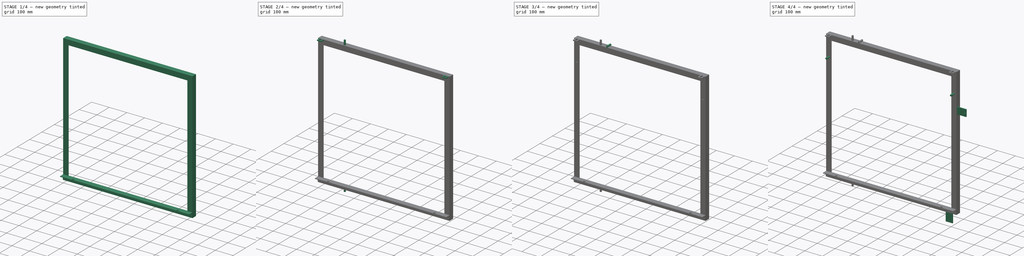
[diagram: build sequence overview — one tinted view per stage of 4, left to right]
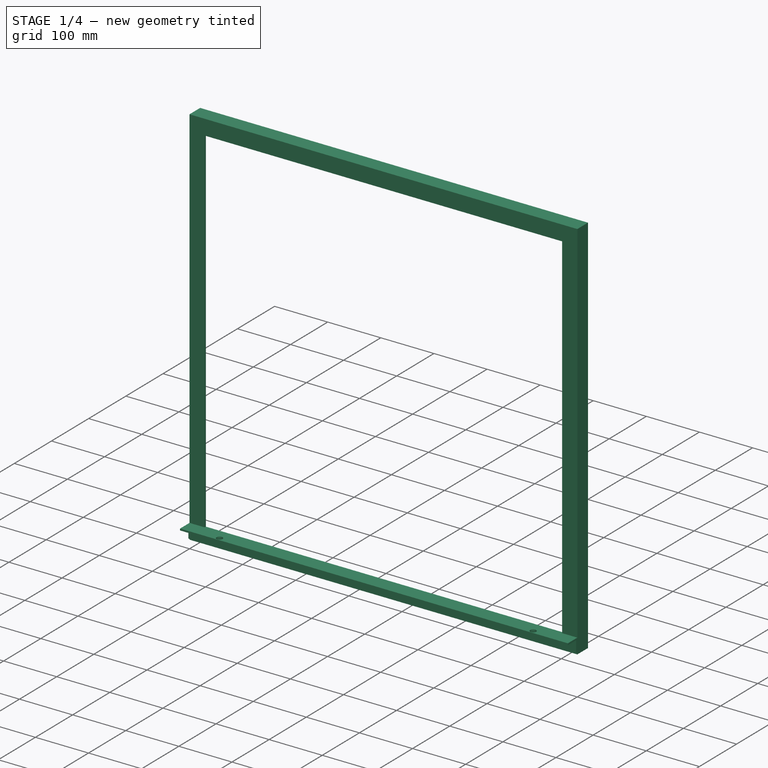
[diagram: stage 1 of 4 — iso view after this stage's code; geometry added in this stage tinted green]
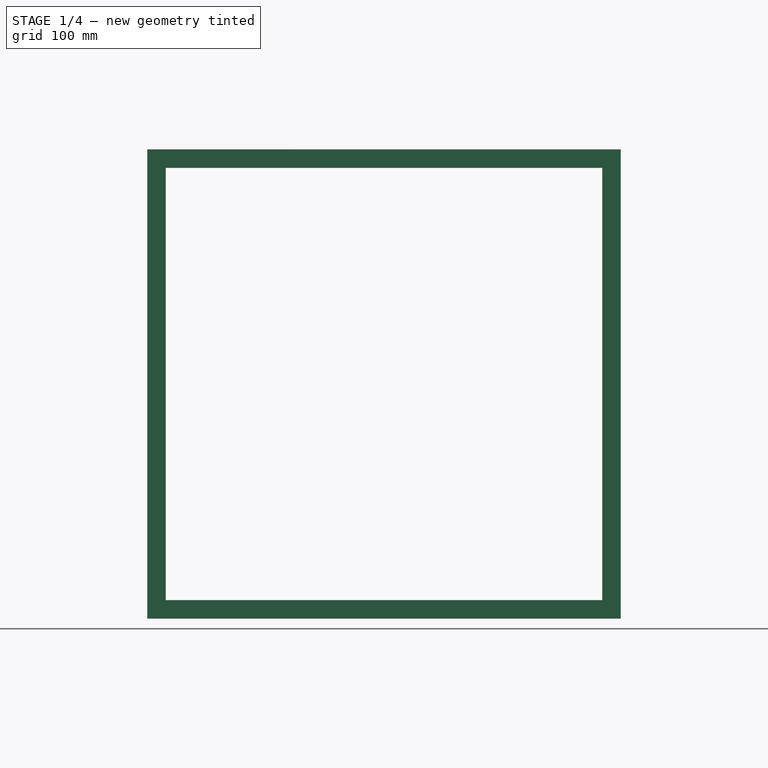
[diagram: stage 1 of 4 — front view after this stage's code; geometry added in this stage tinted green]
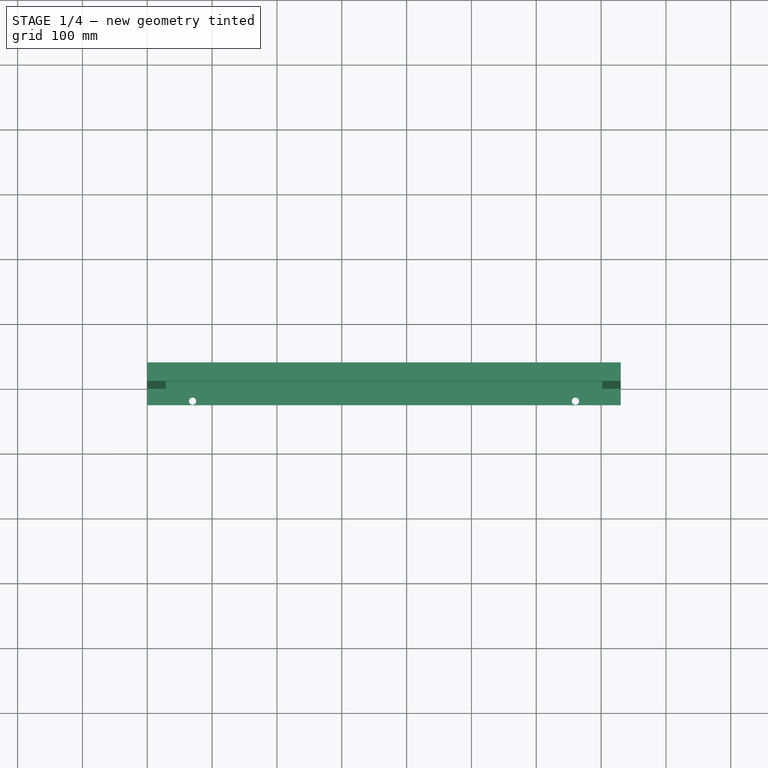
[diagram: stage 1 of 4 — top view after this stage's code; geometry added in this stage tinted green]
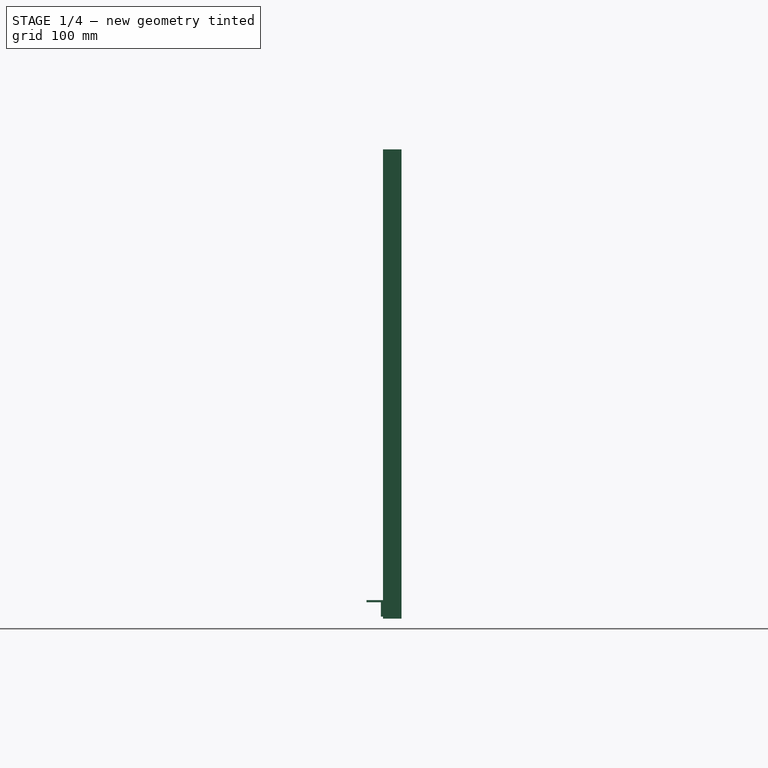
[diagram: stage 1 of 4 — right view after this stage's code; geometry added in this stage tinted green]
FCSTD DOCUMENT  (FreeCAD 0.20R)
Label: adapter-rev2
License: All rights reserved
LicenseURL: http://en.wikipedia.org/wiki/All_rights_reserved
objects: Sketcher::SketchObject×14, PartDesign::Pad×11, PartDesign::Pocket×3, PartDesign::Body×1
note: 43 computed .brp shape members not serialized (recipe doc carries the construction recipe); baked Part::Feature solids carry a one-line shape summary decoded from their .brp

FEATURE [Sketcher::SketchObject] Sketch  label="ring front plan"
  FullyConstrained = true
  MapMode = 5
  Placement = pos=(0,0,0) rot=(1,0,0;1.5708rad)
  Support = -> [XZ_Plane]
  sketch-geometry (12):
    g0: LineSegment StartX=0 StartY=0 StartZ=0 EndX=730.25 EndY=0 EndZ=0
    g1: LineSegment StartX=730.25 StartY=0 StartZ=0 EndX=730.25 EndY=723.9 EndZ=0
    g2: LineSegment StartX=730.25 StartY=723.9 StartZ=0 EndX=0 EndY=723.9 EndZ=0
    g3: LineSegment StartX=0 StartY=723.9 StartZ=0 EndX=0 EndY=0 EndZ=0
    g4: LineSegment StartX=28.575 StartY=28.575 StartZ=0 EndX=701.675 EndY=28.575 EndZ=0
    g5: LineSegment StartX=701.675 StartY=28.575 StartZ=0 EndX=701.675 EndY=695.325 EndZ=0
    g6: LineSegment StartX=701.675 StartY=695.325 StartZ=0 EndX=28.575 EndY=695.325 EndZ=0
    g7: LineSegment StartX=28.575 StartY=695.325 StartZ=0 EndX=28.575 EndY=28.575 EndZ=0
    g8: LineSegment StartX=28.575 StartY=723.9 StartZ=0 EndX=28.575 EndY=695.325 EndZ=0
    g9: LineSegment StartX=28.575 StartY=695.325 StartZ=0 EndX=0 EndY=695.325 EndZ=0
    g10: LineSegment StartX=701.675 StartY=1e-16 StartZ=0 EndX=701.675 EndY=28.575 EndZ=0
    g11: LineSegment StartX=701.675 StartY=28.575 StartZ=0 EndX=730.25 EndY=28.575 EndZ=0
  constraints (35):
    c: Coincident(g0,g1)
    c: Coincident(g1,g2)
    c: Coincident(g2,g3)
    c: Coincident(g3,g0)
    c: Horizontal(g0)
    c: Horizontal(g2)
    c: Vertical(g1)
    c: Vertical(g3)
    c: Coincident(g0,g-1)
    c: DistanceY(g1,g1) = 723.9
    c: DistanceX(g0,g0) = 730.25
    c: Coincident(g4,g5)
    c: Coincident(g5,g6)
    c: Coincident(g6,g7)
    c: Coincident(g7,g4)
    c: Horizontal(g4)
    c: Horizontal(g6)
    c: Vertical(g5)
    c: Vertical(g7)
    c: DistanceY(g6,g2) = 28.575
    c: PointOnObject(g8,g2)
    c: Coincident(g8,g6)
    c: Vertical(g8)
    c: Coincident(g8,g9)
    c: PointOnObject(g10,g0)
    c: Coincident(g10,g4)
    c: Vertical(g10)
    c: Coincident(g10,g11)
    c: PointOnObject(g11,g1)
    c: Horizontal(g11)
    c: Equal(g9,g8)
    c: Equal(g8,g10)
    c: Equal(g10,g11)
    c: PointOnObject(g9,g3)
    c: Horizontal(g9)
FEATURE [PartDesign::Pad] Pad  label="ring front slab"
  Direction = (0,-1,2e-16)
  Length = 3.175
  Length2 = 10
  Placement = pos=(0,0,0) rot=(1,0,0;1.5708rad)
  Profile = -> Sketch
  ReferenceAxis = -> Sketch [N_Axis]
  Reversed = true
  Type = 0
FEATURE [Sketcher::SketchObject] Sketch001  label="ring rib plan"
  ExternalGeometry = -> [Pad]
  FullyConstrained = true
  MapMode = 5
  Placement = pos=(0,3.175,-7e-16) rot=(-1,0,0;1.5708rad)
  Support = -> [Pad]
  sketch-geometry (12):
    g0: LineSegment StartX=0 StartY=0 StartZ=0 EndX=730.25 EndY=0 EndZ=0
    g1: LineSegment StartX=730.25 StartY=0 StartZ=0 EndX=730.25 EndY=-723.9 EndZ=0
    g2: LineSegment StartX=730.25 StartY=-723.9 StartZ=0 EndX=0 EndY=-723.9 EndZ=0
    g3: LineSegment StartX=0 StartY=-723.9 StartZ=0 EndX=0 EndY=0 EndZ=0
    g4: LineSegment StartX=3.175 StartY=-3.175 StartZ=0 EndX=727.075 EndY=-3.175 EndZ=0
    g5: LineSegment StartX=727.075 StartY=-3.175 StartZ=0 EndX=727.075 EndY=-720.725 EndZ=0
    g6: LineSegment StartX=727.075 StartY=-720.725 StartZ=0 EndX=3.175 EndY=-720.725 EndZ=0
    g7: LineSegment StartX=3.175 StartY=-720.725 StartZ=0 EndX=3.175 EndY=-3.175 EndZ=0
    g8: LineSegment StartX=0 StartY=-3.175 StartZ=0 EndX=3.175 EndY=-3.175 EndZ=0
    g9: LineSegment StartX=3.175 StartY=-3.175 StartZ=0 EndX=3.175 EndY=0 EndZ=0
    g10: LineSegment StartX=727.075 StartY=-723.9 StartZ=0 EndX=727.075 EndY=-720.725 EndZ=0
    g11: LineSegment StartX=727.075 StartY=-720.725 StartZ=0 EndX=730.25 EndY=-720.725 EndZ=0
  constraints (34):
    c: Coincident(g0,g1)
    c: Coincident(g1,g2)
    c: Coincident(g2,g3)
    c: Coincident(g3,g0)
    c: Horizontal(g0)
    c: Horizontal(g2)
    c: Vertical(g1)
    c: Vertical(g3)
    c: Coincident(g0,g-1)
    c: Coincident(g4,g5)
    c: Coincident(g5,g6)
    c: Coincident(g6,g7)
    c: Coincident(g7,g4)
    c: Horizontal(g4)
    c: Horizontal(g6)
    c: Vertical(g5)
    c: Vertical(g7)
    c: PointOnObject(g8,g3)
    c: Coincident(g8,g4)
    c: Coincident(g8,g9)
    c: PointOnObject(g9,g0)
    c: PointOnObject(g10,g2)
    c: Coincident(g10,g5)
    c: Vertical(g10)
    c: Coincident(g10,g11)
    c: PointOnObject(g11,g1)
    c: Horizontal(g11)
    c: Vertical(g9)
    c: Horizontal(g8)
    c: Equal(g10,g11)
    c: Equal(g11,g9)
    c: Equal(g9,g8)
    c: Coincident(g1,g-3)
    c: DistanceY(g1,g11) = 3.175
FEATURE [PartDesign::Pad] Pad001  label="ring with rib"
  BaseFeature = -> Pad
  Direction = (0,1,-2e-16)
  Length = 25.4
  Length2 = 10
  Placement = pos=(0,0,0) rot=(1,0,0;1.5708rad)
  Profile = -> Sketch001
  ReferenceAxis = -> Sketch001 [N_Axis]
  Type = 0
FEATURE [Sketcher::SketchObject] Sketch002  label="shelf plan"
  FullyConstrained = true
  MapMode = 5
  Placement = pos=(730.25,0,0) rot=(0.707107,0,0.707107;3.14159rad)
  Support = -> [Pad001]
  sketch-geometry (6):
    g0: LineSegment StartX=3.175 StartY=0 StartZ=0 EndX=28.575 EndY=0 EndZ=0
    g1: LineSegment StartX=28.575 StartY=0 StartZ=0 EndX=28.575 EndY=25.4 EndZ=0
    g2: LineSegment StartX=28.575 StartY=25.4 StartZ=0 EndX=25.4 EndY=25.4 EndZ=0
    g3: LineSegment StartX=25.4 StartY=25.4 StartZ=0 EndX=25.4 EndY=3.175 EndZ=0
    g4: LineSegment StartX=25.4 StartY=3.175 StartZ=0 EndX=3.175 EndY=3.175 EndZ=0
    g5: LineSegment StartX=3.175 StartY=3.175 StartZ=0 EndX=3.175 EndY=0 EndZ=0
  constraints (18):
    c: Horizontal(g0)
    c: Coincident(g0,g1)
    c: Vertical(g1)
    c: Coincident(g1,g2)
    c: Horizontal(g2)
    c: Coincident(g2,g3)
    c: Vertical(g3)
    c: Coincident(g3,g4)
    c: Horizontal(g4)
    c: Coincident(g4,g5)
    c: Coincident(g5,g0)
    c: Vertical(g5)
    c: Equal(g2,g5)
    c: Equal(g3,g4)
    c: DistanceY(g0,g2) = 25.4
    c: DistanceX(g2,g2) = 3.175
    c: PointOnObject(g0,g-1)
    c: DistanceX(g-1,g4) = 3.175
FEATURE [PartDesign::Pad] Pad002  label="ring with shelf"
  BaseFeature = -> Pad001
  Direction = (1,0,-2e-16)
  Length = 730.25
  Length2 = 10
  Placement = pos=(0,0,0) rot=(1,0,0;1.5708rad)
  Profile = -> Sketch002
  ReferenceAxis = -> Sketch002 [N_Axis]
  Reversed = true
  Type = 0
FEATURE [Sketcher::SketchObject] Sketch003  label="kiosk peg hole plan"
  ExternalGeometry = -> [Pad002]
  FullyConstrained = true
  MapMode = 5
  Placement = pos=(6.3e-15,0,28.575) rot=(0,0,1;3.14159rad)
  Support = -> [Pad002]
  sketch-geometry (3):
    g0: LineSegment StartX=-660.4 StartY=19.05 StartZ=0 EndX=-69.85 EndY=19.05 EndZ=0
    g1: Circle CenterX=-660.4 CenterY=19.05 CenterZ=0 NormalX=0 NormalY=0 NormalZ=1 AngleXU=0 Radius=5.55625
    g2: Circle CenterX=-69.85 CenterY=19.05 CenterZ=0 NormalX=0 NormalY=0 NormalZ=1 AngleXU=0 Radius=5.55625
  constraints (8):
    c: Horizontal(g0)
    c: DistanceX(g0,g-1) = 69.85
    c: DistanceX(g-3,g0) = 69.85
    c: DistanceY(g-1,g0) = 19.05
    c: Coincident(g1,g0)
    c: Coincident(g2,g0)
    c: Equal(g1,g2)
    c: Diameter(g1) = 11.1125
FEATURE [PartDesign::Pocket] Pocket  label="frame with kiosk peg holes"
  BaseFeature = -> Pad002
  Direction = (-2e-16,0,-1)
  Length = 5
  Length2 = 5
  Placement = pos=(0,0,0) rot=(1,0,0;1.5708rad)
  Profile = -> Sketch003
  ReferenceAxis = -> Sketch003 [N_Axis]
  Type = 1
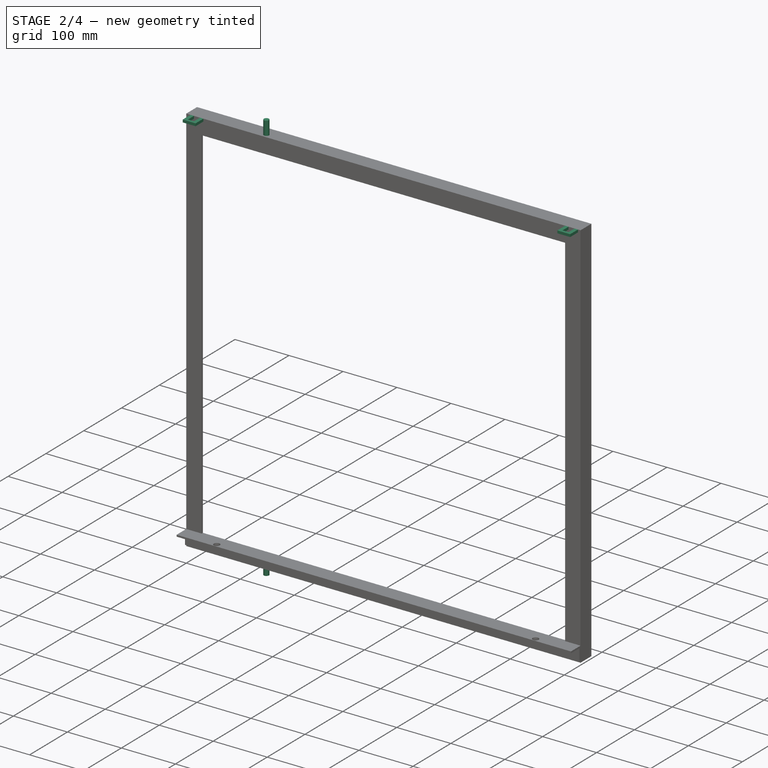
[diagram: stage 2 of 4 — iso view after this stage's code; geometry added in this stage tinted green]
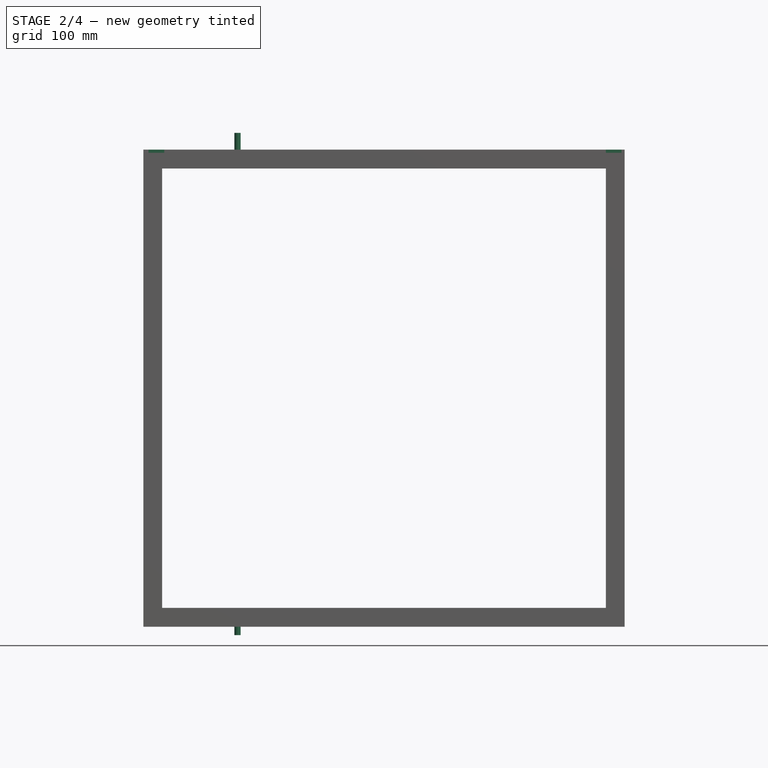
[diagram: stage 2 of 4 — front view after this stage's code; geometry added in this stage tinted green]
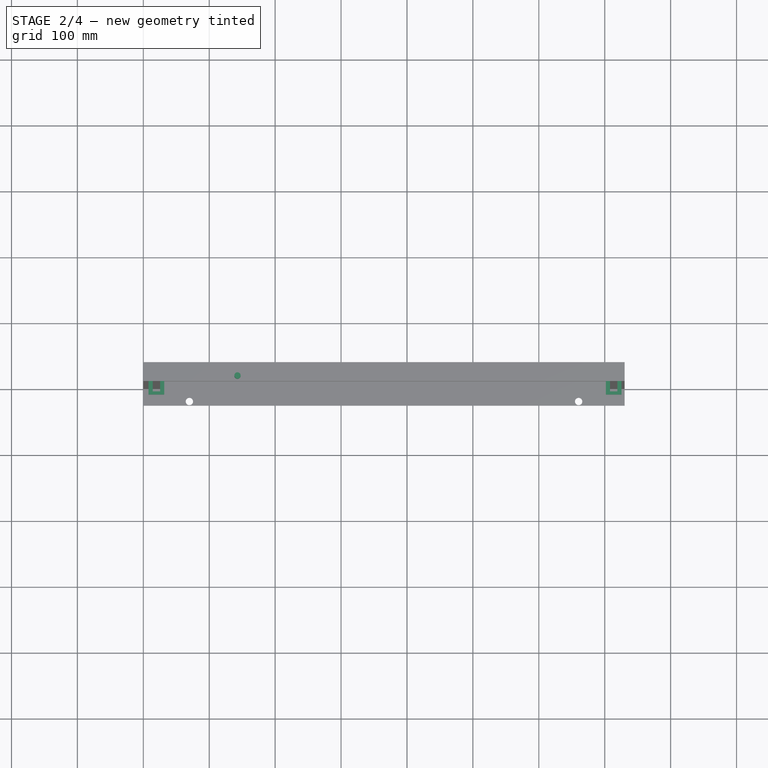
[diagram: stage 2 of 4 — top view after this stage's code; geometry added in this stage tinted green]
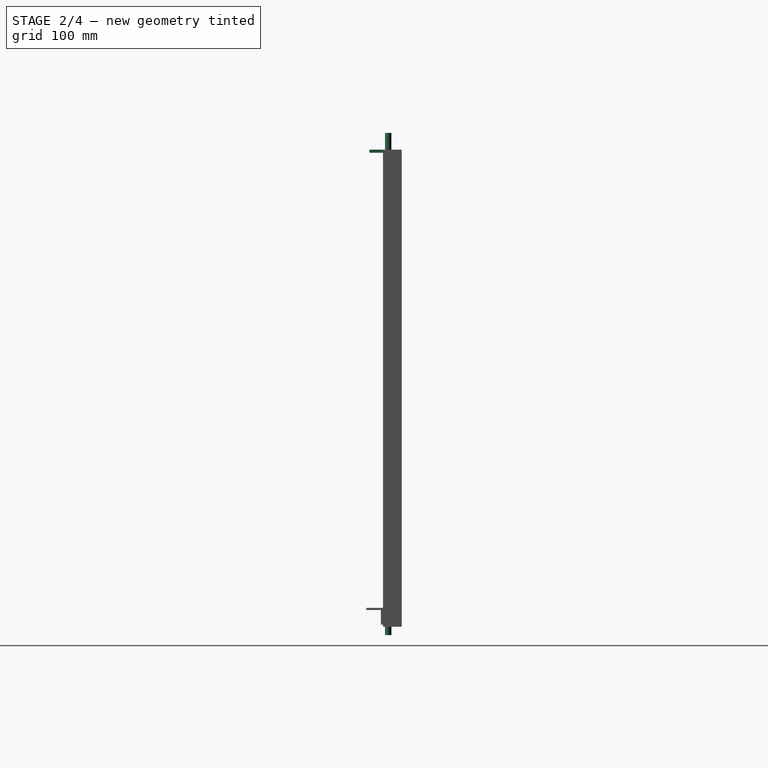
[diagram: stage 2 of 4 — right view after this stage's code; geometry added in this stage tinted green]
FEATURE [Sketcher::SketchObject] Sketch004  label="kiosk deadbolt recept plan"
  ExternalGeometry = -> [Pocket]
  FullyConstrained = true
  MapMode = 5
  Placement = pos=(0,1.607e-13,723.9) rot=(0,0,1;3.14159rad)
  Support = -> [Pocket]
  sketch-geometry (19):
    g0: LineSegment StartX=-725.488 StartY=-3.175 StartZ=0 EndX=-701.675 EndY=-3.175 EndZ=0
    g1: LineSegment StartX=-701.675 StartY=-3.175 StartZ=0 EndX=-701.675 EndY=20.6375 EndZ=0
    g2: LineSegment StartX=-701.675 StartY=20.6375 StartZ=0 EndX=-725.488 EndY=20.6375 EndZ=0
    g3: LineSegment StartX=-725.488 StartY=20.6375 StartZ=0 EndX=-725.488 EndY=-3.175 EndZ=0
    g4: LineSegment StartX=-31.75 StartY=-3.175 StartZ=0 EndX=-7.9375 EndY=-3.175 EndZ=0
    g5: LineSegment StartX=-7.9375 StartY=-3.175 StartZ=0 EndX=-7.9375 EndY=20.6375 EndZ=0
    g6: LineSegment StartX=-7.9375 StartY=20.6375 StartZ=0 EndX=-31.75 EndY=20.6375 EndZ=0
    g7: LineSegment StartX=-31.75 StartY=20.6375 StartZ=0 EndX=-31.75 EndY=-3.175 EndZ=0
    g8: LineSegment StartX=-719.138 StartY=15.875 StartZ=0 EndX=-708.025 EndY=15.875 EndZ=0
    g9: LineSegment StartX=-708.025 StartY=15.875 StartZ=0 EndX=-708.025 EndY=0 EndZ=0
    g10: LineSegment StartX=-708.025 StartY=0 StartZ=0 EndX=-719.138 EndY=0 EndZ=0
    g11: LineSegment StartX=-719.138 StartY=0 StartZ=0 EndX=-719.138 EndY=15.875 EndZ=0
    g12: LineSegment StartX=-25.4 StartY=15.875 StartZ=0 EndX=-14.2875 EndY=15.875 EndZ=0
    g13: LineSegment StartX=-14.2875 StartY=15.875 StartZ=0 EndX=-14.2875 EndY=0 EndZ=0
    g14: LineSegment StartX=-14.2875 StartY=0 StartZ=0 EndX=-25.4 EndY=0 EndZ=0
    g15: LineSegment StartX=-25.4 StartY=0 StartZ=0 EndX=-25.4 EndY=15.875 EndZ=0
    g16: LineSegment StartX=-719.138 StartY=15.875 StartZ=0 EndX=-725.488 EndY=15.875 EndZ=0
    g17: LineSegment StartX=-708.025 StartY=15.875 StartZ=0 EndX=-701.675 EndY=15.875 EndZ=0
    g18: LineSegment StartX=-25.4 StartY=15.875 StartZ=0 EndX=-31.75 EndY=15.875 EndZ=0
  constraints (57):
    c: Coincident(g0,g1)
    c: Coincident(g1,g2)
    c: Coincident(g2,g3)
    c: Coincident(g3,g0)
    c: Horizontal(g0)
    c: Horizontal(g2)
    c: Vertical(g1)
    c: Vertical(g3)
    c: Coincident(g4,g5)
    c: Coincident(g5,g6)
    c: Coincident(g6,g7)
    c: Coincident(g7,g4)
    c: Horizontal(g4)
    c: Horizontal(g6)
    c: Vertical(g5)
    c: Vertical(g7)
    c: PointOnObject(g0,g-3)
    c: PointOnObject(g4,g-3)
    c: Equal(g2,g6)
    c: Equal(g7,g1)
    c: DistanceX(g-3,g0) = 28.575
    c: DistanceX(g4,g-3) = 31.75
    c: DistanceX(g2,g2) = 23.8125
    c: Coincident(g8,g9)
    c: Coincident(g9,g10)
    c: Coincident(g10,g11)
    c: Coincident(g11,g8)
    c: Horizontal(g8)
    c: Horizontal(g10)
    c: Vertical(g9)
    c: Vertical(g11)
    c: Coincident(g12,g13)
    c: Coincident(g13,g14)
    c: Coincident(g14,g15)
    c: Coincident(g15,g12)
    c: Horizontal(g12)
    c: Horizontal(g14)
    c: Vertical(g13)
    c: Vertical(g15)
    c: Equal(g15,g9)
    c: PointOnObject(g10,g-1)
    c: Coincident(g16,g8)
    c: PointOnObject(g16,g3)
    c: Horizontal(g16)
    c: Coincident(g17,g8)
    c: PointOnObject(g17,g1)
    c: Horizontal(g17)
    c: Coincident(g18,g12)
    c: PointOnObject(g18,g7)
    c: Horizontal(g18)
    c: PointOnObject(g14,g-1)
    c: Equal(g18,g17)
    c: Equal(g17,g16)
    c: DistanceX(g8,g8) = 11.1125
    c: DistanceY(g16,g2) = 4.7625
    c: DistanceY(g9,g9) = 15.875
    c: Equal(g12,g8)
FEATURE [PartDesign::Pad] Pad003  label="frame with kiosk deadbolt recept"
  BaseFeature = -> Pocket
  Direction = (0,2e-16,1)
  Length = 4.7625
  Length2 = 10
  Placement = pos=(0,0,0) rot=(1,0,0;1.5708rad)
  Profile = -> Sketch004
  ReferenceAxis = -> Sketch004 [N_Axis]
  Reversed = true
  Type = 0
FEATURE [Sketcher::SketchObject] Sketch005  label="top pin plan"
  FullyConstrained = true
  MapMode = 5
  Placement = pos=(0,1.607e-13,723.9) rot=(0,0,1;3.14159rad)
  Support = -> [Pad003]
  sketch-geometry (1):
    g0: Circle CenterX=-142.875 CenterY=-7.9375 CenterZ=0 NormalX=0 NormalY=0 NormalZ=1 AngleXU=0 Radius=4.7625
  constraints (3):
    c: DistanceX(g0,g-1) = 142.875
    c: Diameter(g0) = 9.525
    c: DistanceY(g0,g-1) = 7.9375
FEATURE [PartDesign::Pad] Pad004  label="frame with top pin"
  BaseFeature = -> Pad003
  Direction = (0,2e-16,1)
  Length = 25.4
  Length2 = 10
  Placement = pos=(0,0,0) rot=(1,0,0;1.5708rad)
  Profile = -> Sketch005
  ReferenceAxis = -> Sketch005 [N_Axis]
  Type = 0
FEATURE [Sketcher::SketchObject] Sketch006  label="bottom pin plan"
  FullyConstrained = true
  MapMode = 5
  Placement = pos=(0,0,0) rot=(1,0,0;3.14159rad)
  Support = -> [Pad004]
  sketch-geometry (1):
    g0: Circle CenterX=142.875 CenterY=-7.9375 CenterZ=0 NormalX=0 NormalY=0 NormalZ=1 AngleXU=0 Radius=4.7625
  constraints (3):
    c: DistanceY(g0,g-1) = 7.9375
    c: Diameter(g0) = 9.525
    c: DistanceX(g-1,g0) = 142.875
FEATURE [PartDesign::Pad] Pad005  label="frame with bottom pin"
  BaseFeature = -> Pad004
  Direction = (0,-2e-16,-1)
  Length = 12.7
  Length2 = 10
  Placement = pos=(0,0,0) rot=(1,0,0;1.5708rad)
  Profile = -> Sketch006
  ReferenceAxis = -> Sketch006 [N_Axis]
  Type = 0
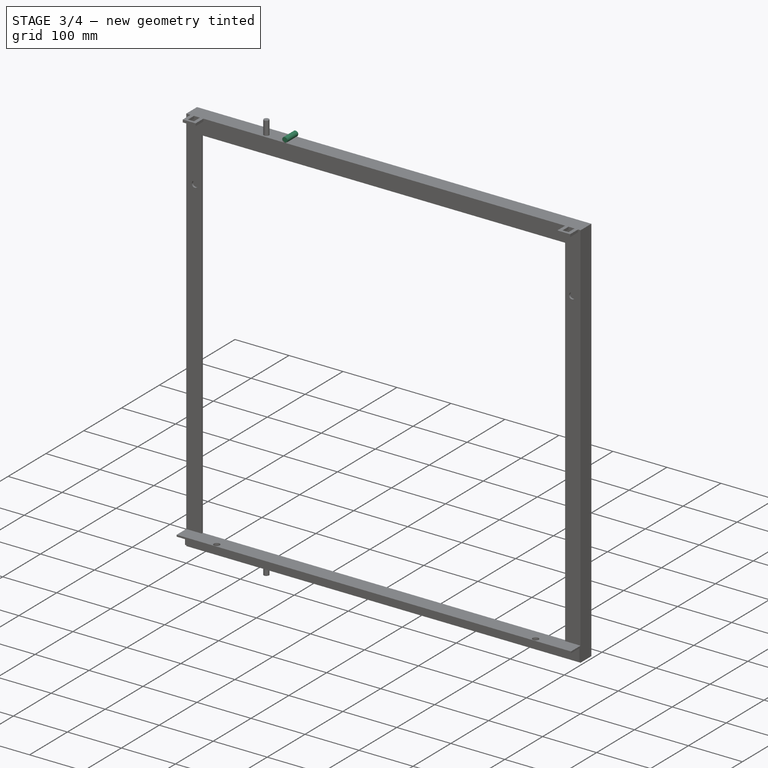
[diagram: stage 3 of 4 — iso view after this stage's code; geometry added in this stage tinted green]
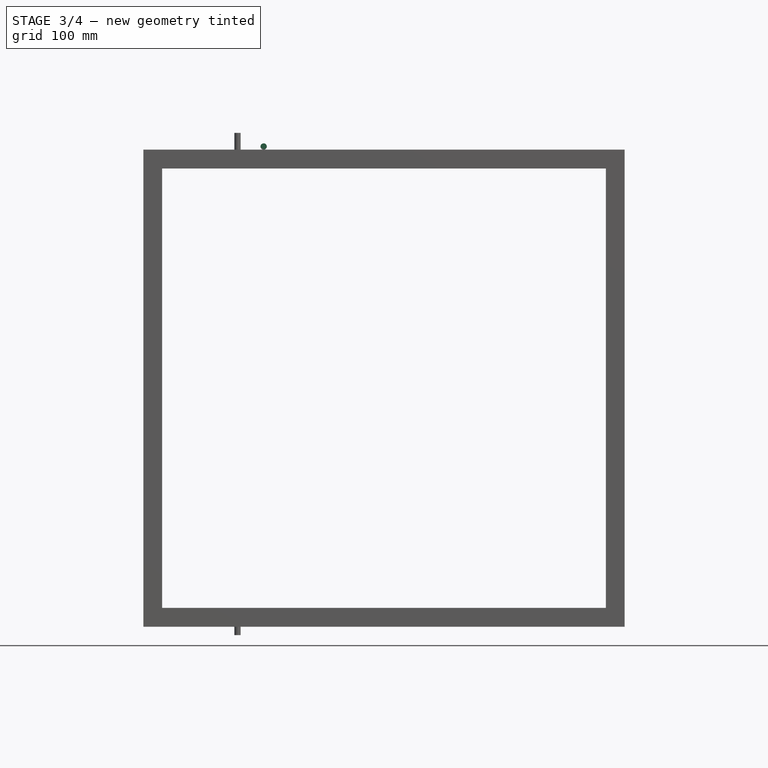
[diagram: stage 3 of 4 — front view after this stage's code; geometry added in this stage tinted green]
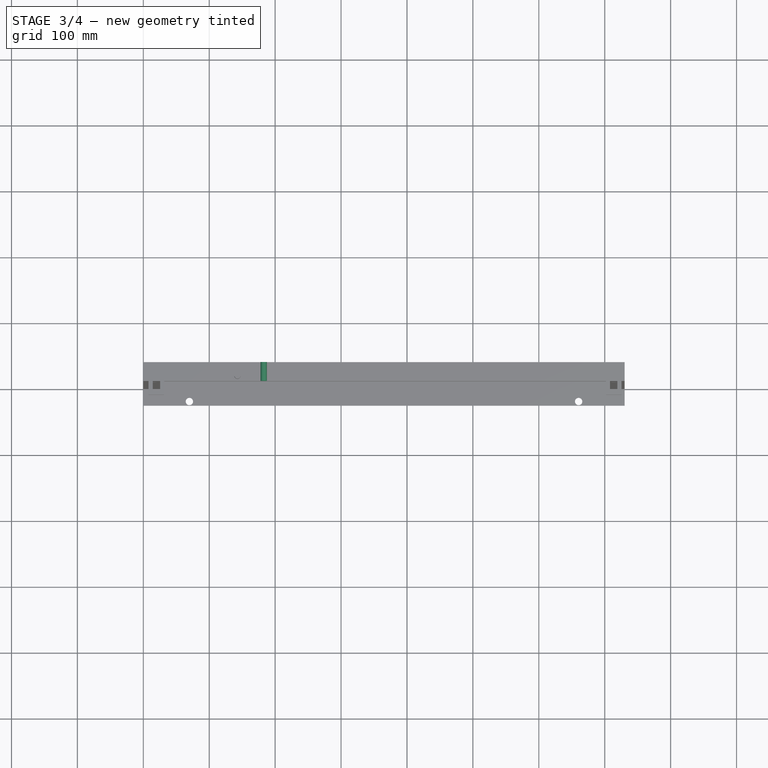
[diagram: stage 3 of 4 — top view after this stage's code; geometry added in this stage tinted green]
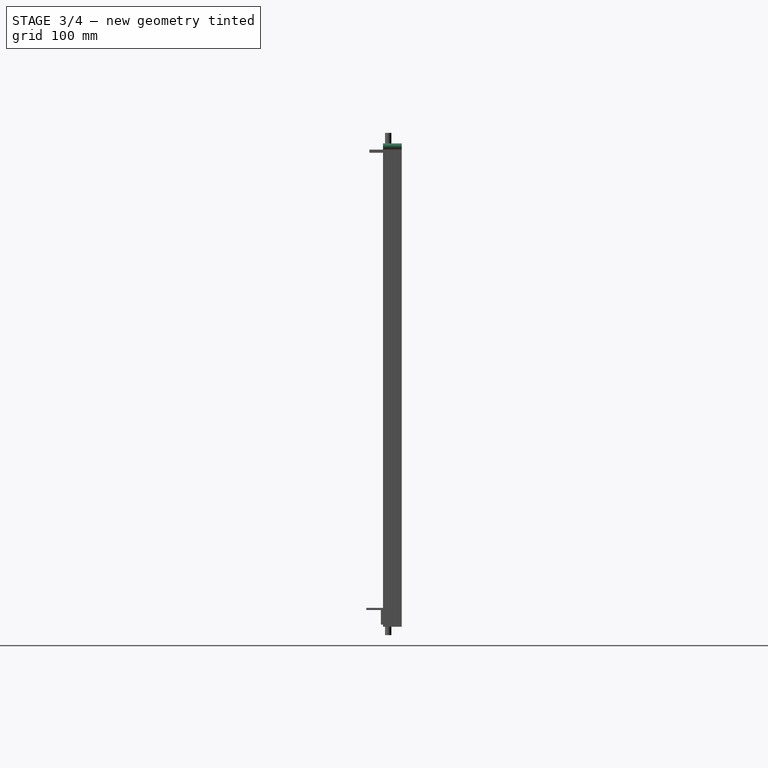
[diagram: stage 3 of 4 — right view after this stage's code; geometry added in this stage tinted green]
FEATURE [Sketcher::SketchObject] Sketch007  label="top bar plan"
  ExternalGeometry = -> [Pad005]
  FullyConstrained = true
  MapMode = 5
  Placement = pos=(0,0,0) rot=(1,0,0;1.5708rad)
  Support = -> [Pad005]
  sketch-geometry (1):
    g0: Circle CenterX=182.562 CenterY=728.599 CenterZ=0 NormalX=0 NormalY=0 NormalZ=1 AngleXU=0 Radius=4.826
  constraints (3):
    c: DistanceX(g-1,g0) = 182.562
    c: Diameter(g0) = 9.652
    c: DistanceY(g-3,g0) = 4.699
FEATURE [PartDesign::Pad] Pad006  label="frame with top bar"
  BaseFeature = -> Pad005
  Direction = (0,-1,2e-16)
  Length = 28.575
  Length2 = 10
  Placement = pos=(0,0,0) rot=(1,0,0;1.5708rad)
  Profile = -> Sketch007
  ReferenceAxis = -> Sketch007 [N_Axis]
  Reversed = true
  Type = 0
FEATURE [Sketcher::SketchObject] Sketch008  label="kiosk bolt hole plan"
  ExternalGeometry = -> [Pad006]
  FullyConstrained = true
  MapMode = 5
  Placement = pos=(0,0,0) rot=(1,0,0;1.5708rad)
  Support = -> [Pad006]
  sketch-geometry (3):
    g0: LineSegment StartX=15.875 StartY=609.6 StartZ=0 EndX=714.375 EndY=609.6 EndZ=0
    g1: Circle CenterX=15.875 CenterY=609.6 CenterZ=0 NormalX=0 NormalY=0 NormalZ=1 AngleXU=0 Radius=5.55625
    g2: Circle CenterX=714.375 CenterY=609.6 CenterZ=0 NormalX=0 NormalY=0 NormalZ=1 AngleXU=0 Radius=5.55625
  constraints (8):
    c: Horizontal(g0)
    c: Coincident(g1,g0)
    c: Coincident(g2,g0)
    c: DistanceX(g1,g-3) = 12.7
    c: DistanceX(g-3,g2) = 12.7
    c: DistanceY(g1,g-4) = 114.3
    c: Equal(g2,g1)
    c: Diameter(g2) = 11.1125
FEATURE [PartDesign::Pocket] Pocket001  label="frame with kiosk bolt holes"
  BaseFeature = -> Pad006
  Direction = (0,1,-2e-16)
  Length = 5
  Length2 = 5
  Placement = pos=(0,0,0) rot=(1,0,0;1.5708rad)
  Profile = -> Sketch008
  ReferenceAxis = -> Sketch008 [N_Axis]
  Type = 1
FEATURE [Sketcher::SketchObject] Sketch009  label="hex bolt head plan"
  ExternalGeometry = -> [Pocket001]
  FullyConstrained = true
  MapMode = 5
  Placement = pos=(0,3.175,-7e-16) rot=(-1,0,0;1.5708rad)
  Support = -> [Pocket001]
  sketch-geometry (14):
    g0: LineSegment StartX=23.0187 StartY=-605.476 StartZ=0 EndX=15.875 EndY=-601.351 EndZ=0
    g1: LineSegment StartX=15.875 StartY=-601.351 StartZ=0 EndX=8.73125 EndY=-605.476 EndZ=0
    g2: LineSegment StartX=8.73125 StartY=-605.476 StartZ=0 EndX=8.73125 EndY=-613.724 EndZ=0
    g3: LineSegment StartX=8.73125 StartY=-613.724 StartZ=0 EndX=15.875 EndY=-617.849 EndZ=0
    g4: LineSegment StartX=15.875 StartY=-617.849 StartZ=0 EndX=23.0187 EndY=-613.724 EndZ=0
    g5: LineSegment StartX=23.0187 StartY=-613.724 StartZ=0 EndX=23.0187 EndY=-605.476 EndZ=0
    g6: Circle CenterX=15.875 CenterY=-609.6 CenterZ=0 NormalX=0 NormalY=0 NormalZ=1 AngleXU=0 Radius=8.24889
    g7: LineSegment StartX=714.375 StartY=-601.351 StartZ=0 EndX=707.231 EndY=-605.476 EndZ=0
    g8: LineSegment StartX=707.231 StartY=-605.476 StartZ=0 EndX=707.231 EndY=-613.724 EndZ=0
    g9: LineSegment StartX=707.231 StartY=-613.724 StartZ=0 EndX=714.375 EndY=-617.849 EndZ=0
    g10: LineSegment StartX=714.375 StartY=-617.849 StartZ=0 EndX=721.519 EndY=-613.724 EndZ=0
    g11: LineSegment StartX=721.519 StartY=-613.724 StartZ=0 EndX=721.519 EndY=-605.476 EndZ=0
    g12: LineSegment StartX=721.519 StartY=-605.476 StartZ=0 EndX=714.375 EndY=-601.351 EndZ=0
    g13: Circle CenterX=714.375 CenterY=-609.6 CenterZ=0 NormalX=0 NormalY=0 NormalZ=1 AngleXU=0 Radius=8.24889
  constraints (32):
    c: Coincident(g0,g1)
    c: Coincident(g1,g2)
    c: Coincident(g2,g3)
    c: Coincident(g3,g4)
    c: Coincident(g4,g5)
    c: Coincident(g5,g0)
    c: Equal(g0, g1-g5) x5
    c: PointOnObject(g0,g6)
    c: PointOnObject(g1,g6)
    c: PointOnObject(g2,g6)
    c: PointOnObject(g3,g6)
    c: PointOnObject(g4,g6)
    c: PointOnObject(g5,g6)
    c: Coincident(g6,g-3)
    c: Coincident(g7,g8)
    c: Coincident(g8,g9)
    c: Coincident(g9,g10)
    c: Coincident(g10,g11)
    c: Coincident(g11,g12)
    c: Coincident(g12,g7)
    c: Equal(g7, g8-g12) x5
    c: PointOnObject(g7,g13)
    c: PointOnObject(g8,g13)
    c: PointOnObject(g9,g13)
    c: PointOnObject(g10,g13)
    c: PointOnObject(g11,g13)
    c: PointOnObject(g12,g13)
    c: Coincident(g13,g-4)
    c: Equal(g6,g13)
    c: Vertical(g5)
    c: Vertical(g8)
    c: DistanceX(g1,g0) = 14.2875
FEATURE [PartDesign::Pad] Pad007  label="frame with hex bolt heads"
  BaseFeature = -> Pocket001
  Direction = (0,1,-2e-16)
  Length = 5.95312
  Length2 = 10
  Placement = pos=(0,0,0) rot=(1,0,0;1.5708rad)
  Profile = -> Sketch009
  ReferenceAxis = -> Sketch009 [N_Axis]
  Type = 0
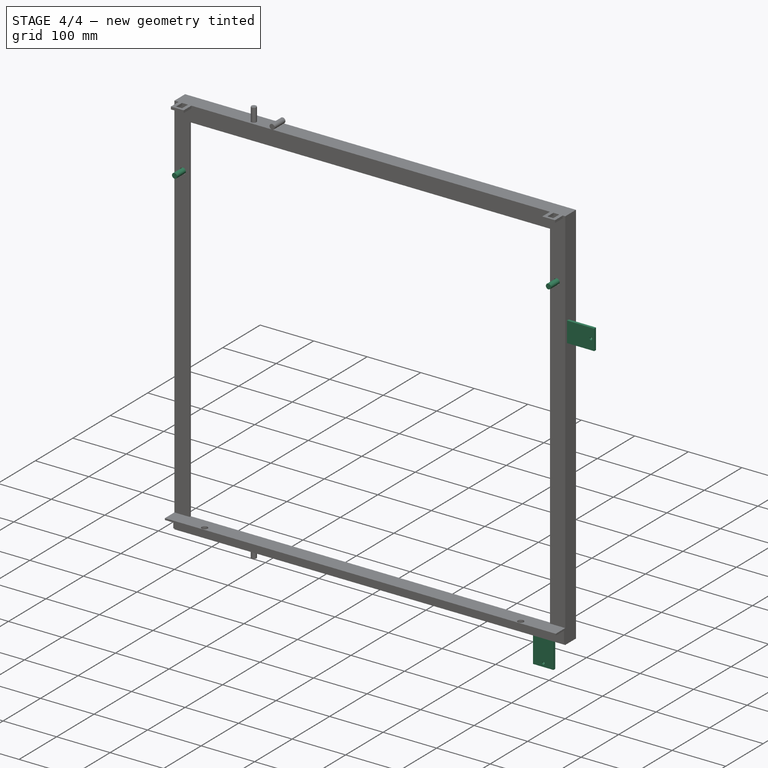
[diagram: stage 4 of 4 — iso view after this stage's code; geometry added in this stage tinted green]
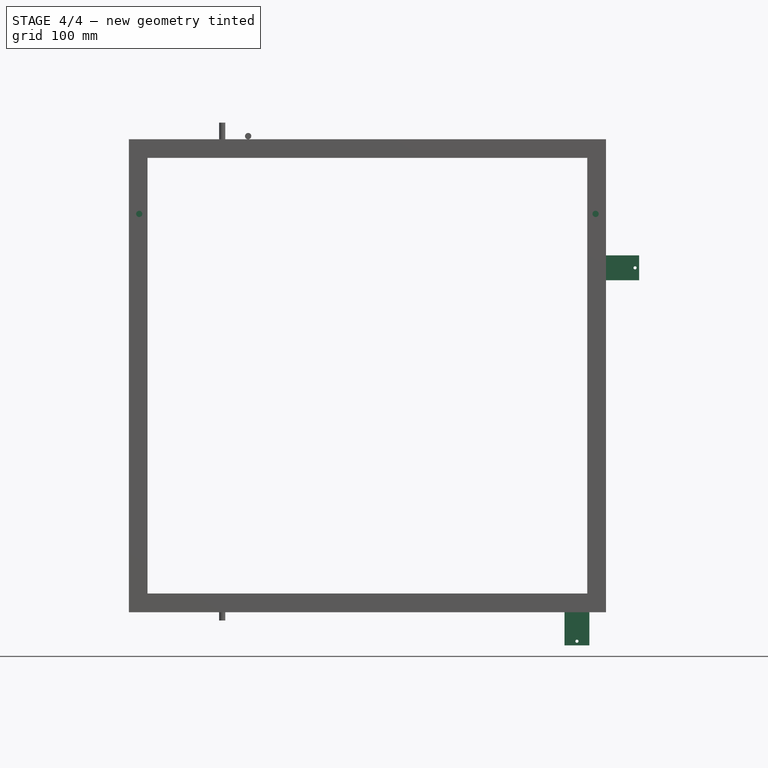
[diagram: stage 4 of 4 — front view after this stage's code; geometry added in this stage tinted green]
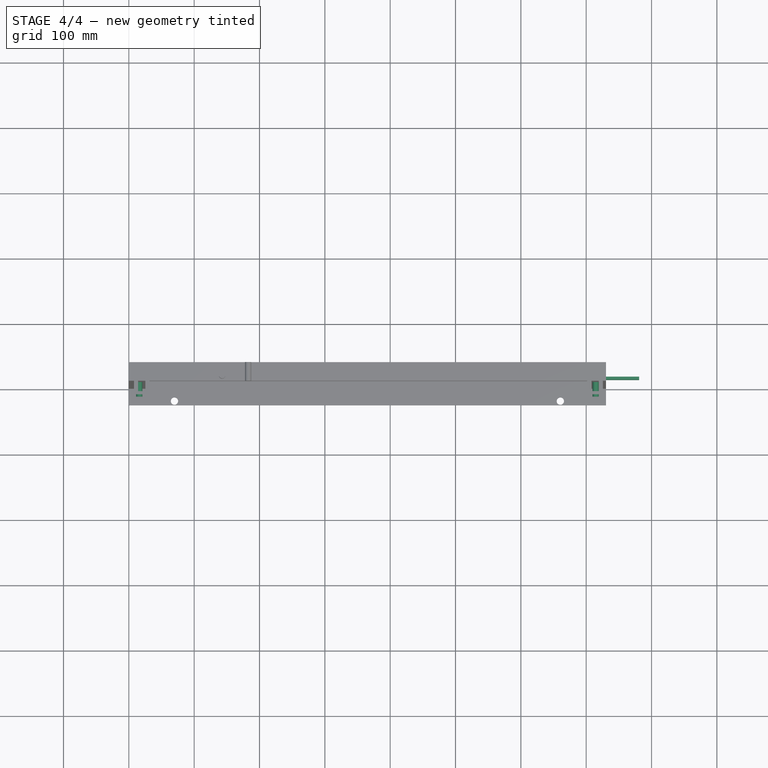
[diagram: stage 4 of 4 — top view after this stage's code; geometry added in this stage tinted green]
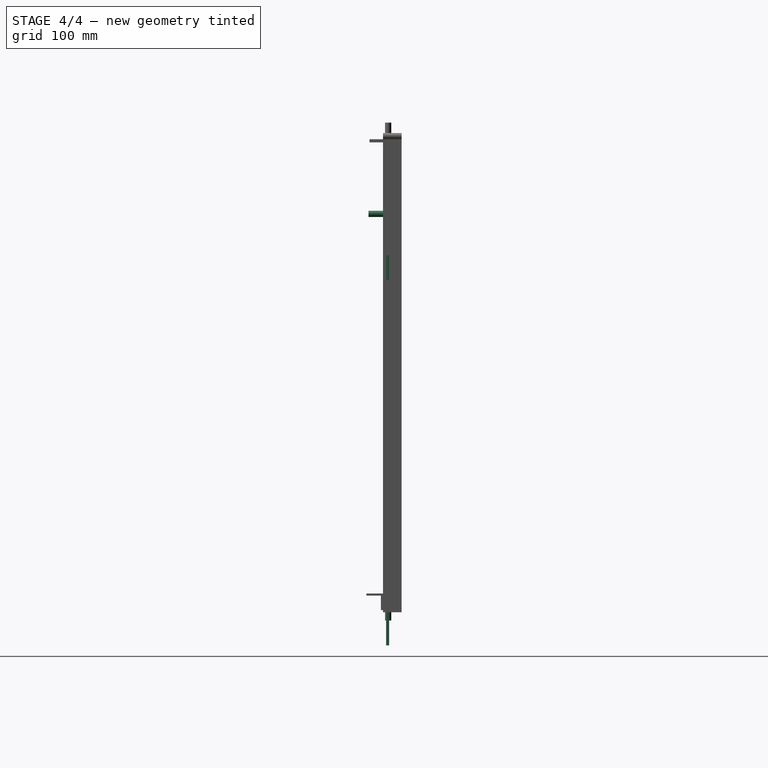
[diagram: stage 4 of 4 — right view after this stage's code; geometry added in this stage tinted green]
FEATURE [Sketcher::SketchObject] Sketch010  label="hex bolt shank plan"
  ExternalGeometry = -> [Pad007]
  FullyConstrained = true
  MapMode = 5
  Placement = pos=(0,3.175,-7e-16) rot=(1,0,0;1.5708rad)
  Support = -> [Pad007]
  sketch-geometry (2):
    g0: Circle CenterX=15.875 CenterY=609.6 CenterZ=0 NormalX=0 NormalY=0 NormalZ=1 AngleXU=0 Radius=4.7625
    g1: Circle CenterX=714.375 CenterY=609.6 CenterZ=0 NormalX=0 NormalY=0 NormalZ=1 AngleXU=0 Radius=4.7625
  constraints (4):
    c: Coincident(g0,g-3)
    c: Coincident(g1,g-4)
    c: Equal(g0,g1)
    c: Diameter(g0) = 9.525
FEATURE [PartDesign::Pad] Pad008  label="frame with hex bolt shanks"
  BaseFeature = -> Pad007
  Direction = (0,-1,2e-16)
  Length = 25.4
  Length2 = 10
  Placement = pos=(0,0,0) rot=(1,0,0;1.5708rad)
  Profile = -> Sketch010
  ReferenceAxis = -> Sketch010 [N_Axis]
  Type = 0
FEATURE [Sketcher::SketchObject] Sketch011  label="right tab plan"
  ExternalGeometry = -> [Pad008]
  FullyConstrained = true
  MapMode = 5
  Placement = pos=(730.25,0,0) rot=(0.707107,0,0.707107;3.14159rad)
  Support = -> [Pad008]
  sketch-geometry (4):
    g0: LineSegment StartX=508 StartY=-4.7625 StartZ=0 EndX=546.1 EndY=-4.7625 EndZ=0
    g1: LineSegment StartX=546.1 StartY=-4.7625 StartZ=0 EndX=546.1 EndY=-9.525 EndZ=0
    g2: LineSegment StartX=546.1 StartY=-9.525 StartZ=0 EndX=508 EndY=-9.525 EndZ=0
    g3: LineSegment StartX=508 StartY=-9.525 StartZ=0 EndX=508 EndY=-4.7625 EndZ=0
  constraints (12):
    c: Coincident(g0,g1)
    c: Coincident(g1,g2)
    c: Coincident(g2,g3)
    c: Coincident(g3,g0)
    c: Horizontal(g0)
    c: Horizontal(g2)
    c: Vertical(g1)
    c: Vertical(g3)
    c: DistanceY(g1,g-3) = 9.525
    c: DistanceX(g0,g-3) = 177.8
    c: DistanceX(g2,g2) = 38.1
    c: DistanceY(g3,g3) = 4.7625
FEATURE [PartDesign::Pad] Pad009  label="frame with right tab"
  BaseFeature = -> Pad008
  Direction = (1,0,-2e-16)
  Length = 50.8
  Length2 = 10
  Placement = pos=(0,0,0) rot=(1,0,0;1.5708rad)
  Profile = -> Sketch011
  ReferenceAxis = -> Sketch011 [N_Axis]
  Type = 0
FEATURE [Sketcher::SketchObject] Sketch012  label="bottom tab plan"
  ExternalGeometry = -> [Pad009]
  FullyConstrained = true
  MapMode = 5
  Placement = pos=(0,0,0) rot=(1,0,0;3.14159rad)
  Support = -> [Pad009]
  sketch-geometry (4):
    g0: LineSegment StartX=666.75 StartY=-4.7625 StartZ=0 EndX=704.85 EndY=-4.7625 EndZ=0
    g1: LineSegment StartX=704.85 StartY=-4.7625 StartZ=0 EndX=704.85 EndY=-9.525 EndZ=0
    g2: LineSegment StartX=704.85 StartY=-9.525 StartZ=0 EndX=666.75 EndY=-9.525 EndZ=0
    g3: LineSegment StartX=666.75 StartY=-9.525 StartZ=0 EndX=666.75 EndY=-4.7625 EndZ=0
  constraints (12):
    c: Coincident(g0,g1)
    c: Coincident(g1,g2)
    c: Coincident(g2,g3)
    c: Coincident(g3,g0)
    c: Horizontal(g0)
    c: Horizontal(g2)
    c: Vertical(g1)
    c: Vertical(g3)
    c: DistanceX(g2,g2) = 38.1
    c: DistanceY(g3,g3) = 4.7625
    c: DistanceY(g1,g-3) = 9.525
    c: DistanceX(g0,g-3) = 25.4
FEATURE [PartDesign::Pad] Pad010  label="frame with bottom tab"
  BaseFeature = -> Pad009
  Direction = (0,-2e-16,-1)
  Length = 50.8
  Length2 = 10
  Placement = pos=(0,0,0) rot=(1,0,0;1.5708rad)
  Profile = -> Sketch012
  ReferenceAxis = -> Sketch012 [N_Axis]
  Type = 0
FEATURE [Sketcher::SketchObject] Sketch013  label="tab hole plan"
  ExternalGeometry = -> [Pad010]
  FullyConstrained = true
  MapMode = 5
  Placement = pos=(0,0,0) rot=(1,0,0;1.5708rad)
  Support = -> [Pad010]
  sketch-geometry (6):
    g0: Circle CenterX=774.7 CenterY=527.05 CenterZ=0 NormalX=0 NormalY=0 NormalZ=1 AngleXU=0 Radius=2.38125
    g1: Circle CenterX=685.8 CenterY=-44.45 CenterZ=0 NormalX=0 NormalY=0 NormalZ=1 AngleXU=0 Radius=2.38125
    g2: LineSegment StartX=781.05 StartY=546.1 StartZ=0 EndX=774.7 EndY=527.05 EndZ=0
    g3: LineSegment StartX=774.7 StartY=527.05 StartZ=0 EndX=781.05 EndY=508 EndZ=0
    g4: LineSegment StartX=704.85 StartY=-50.8 StartZ=0 EndX=685.8 EndY=-44.45 EndZ=0
    g5: LineSegment StartX=685.8 StartY=-44.45 StartZ=0 EndX=666.75 EndY=-50.8 EndZ=0
  constraints (14):
    c: Coincident(g-3,g2)
    c: Coincident(g2,g0)
    c: Coincident(g2,g3)
    c: Coincident(g3,g-3)
    c: Coincident(g-4,g4)
    c: Coincident(g4,g1)
    c: Coincident(g4,g5)
    c: Coincident(g5,g-4)
    c: Equal(g5,g4)
    c: Equal(g4,g3)
    c: Equal(g3,g2)
    c: DistanceX(g0,g3) = 6.35
    c: Equal(g0,g1)
    c: Diameter(g0) = 4.7625
FEATURE [PartDesign::Pocket] Pocket002  label="frame with tab holes"
  BaseFeature = -> Pad010
  Direction = (0,1,-2e-16)
  Length = 5
  Length2 = 5
  Placement = pos=(0,0,0) rot=(1,0,0;1.5708rad)
  Profile = -> Sketch013
  ReferenceAxis = -> Sketch013 [N_Axis]
  Type = 1
FEATURE [PartDesign::Body] Body  label="frame body"
  Group = -> [Sketch,Pad,Sketch001,Pad001,Sketch002,Pad002,Sketch003,Pocket,Sketch004,Pad003,Sketch005,Pad004,Sketch006,Pad005,Sketch007,Pad006,Sketch008,Pocket001,Sketch009,Pad007,Sketch010,Pad008,Sketch011,Pad009,Sketch012,Pad010,Sketch013,Pocket002]
  Origin = -> Origin
  Tip = -> Pocket002
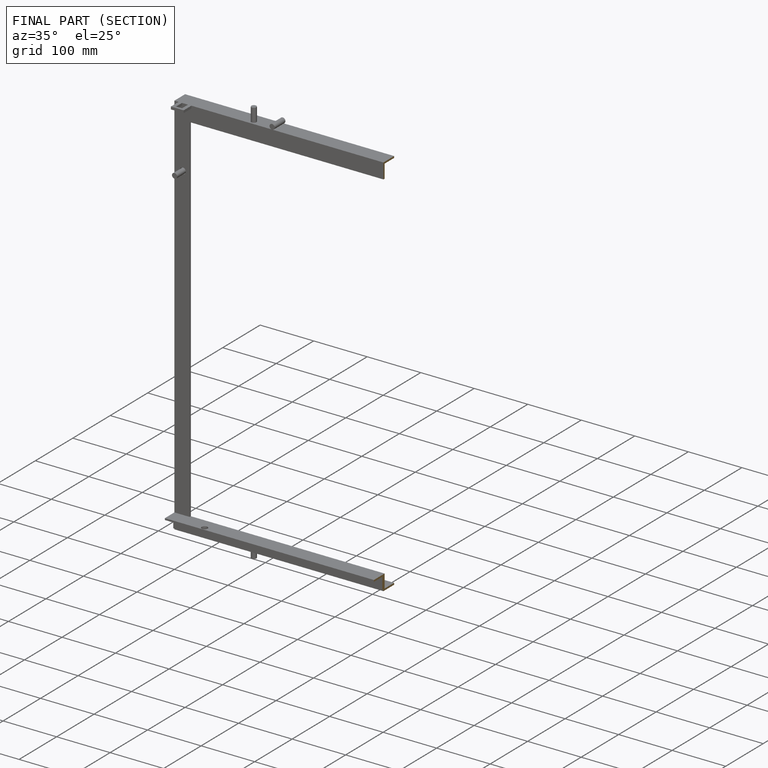
[diagram: finished part — half-section view (interior)]
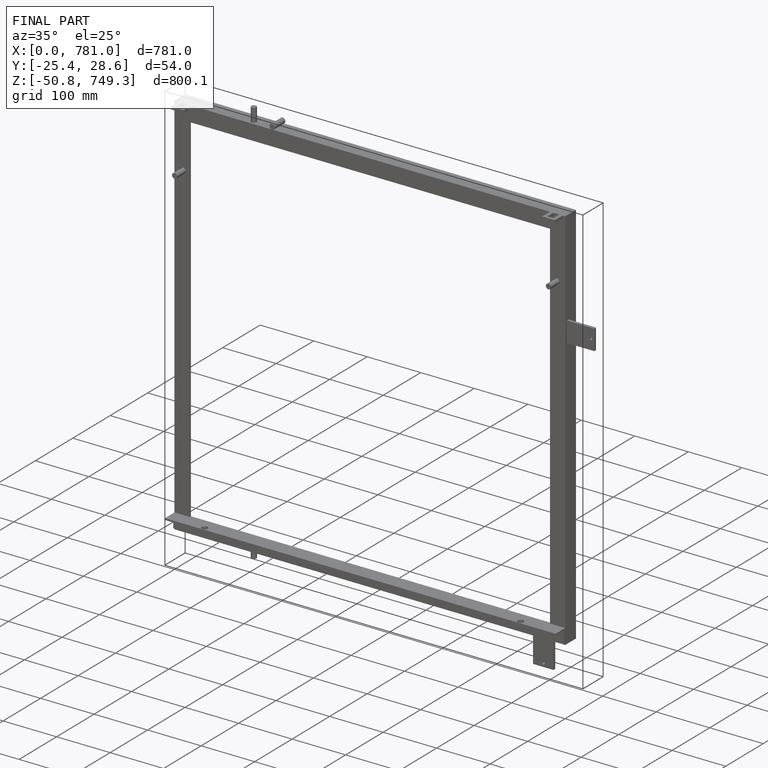
[diagram: finished part — iso view with bounding-box wireframe]
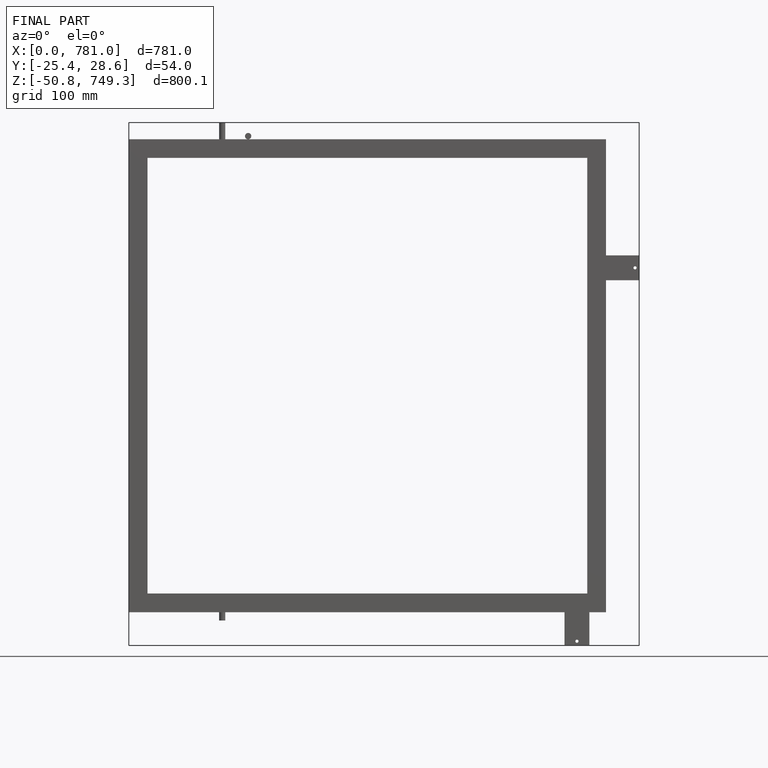
[diagram: finished part — front view with bounding-box wireframe]
